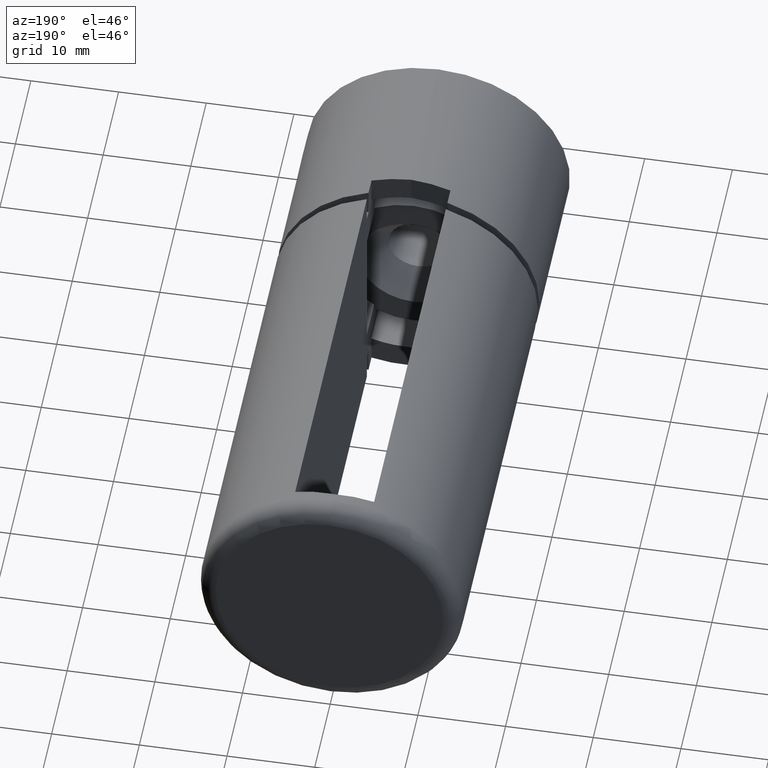
[diagram: clean part render]
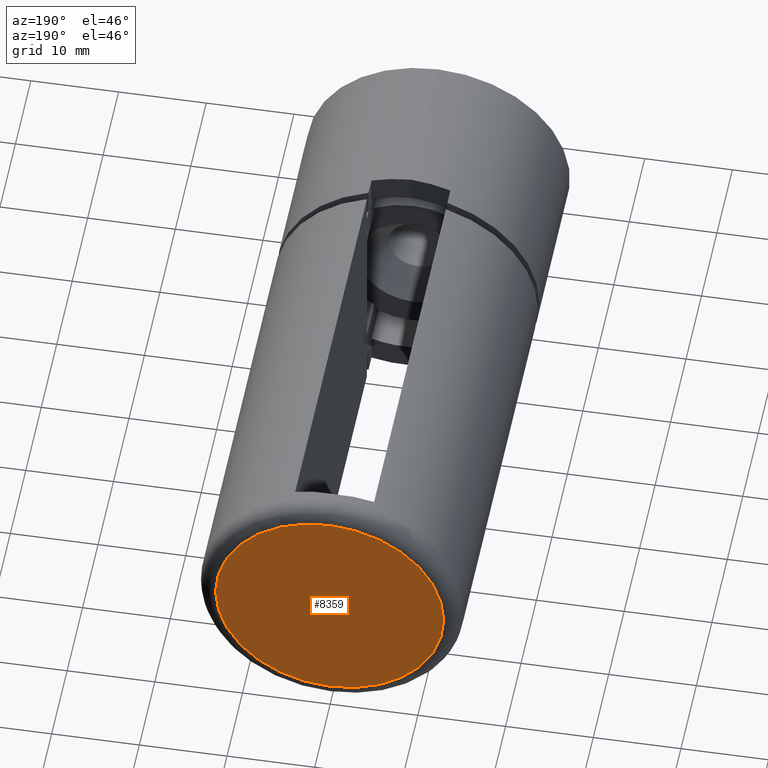
[diagram: same view with one face highlighted and labeled with its STEP entity id]
A machine part, auxiliary view. The second image highlights one B-rep face of the part: STEP entity #8359.
In plain terms, the highlighted planar face has unit normal (0, 1, 0).
Its self-contained STEP definition (entity closure, byte-faithful):
#996 = CARTESIAN_POINT ( 'NONE',  ( 0.0000000000000000000, 1.500000000000000000, 0.0000000000000000000 ) ) ;
#2787 = CARTESIAN_POINT ( 'NONE',  ( 0.0000000000000000000, 1.500000000000000000, -13.00000000000000000 ) ) ;
#3657 = DIRECTION ( 'NONE',  ( 0.0000000000000000000, -1.000000000000000000, 0.0000000000000000000 ) ) ;
#4005 = VERTEX_POINT ( 'NONE', #2787 ) ;
#6695 = AXIS2_PLACEMENT_3D ( 'NONE', #996, #3657, #17103 ) ;
#8359 = ADVANCED_FACE ( 'NONE', ( #9821 ), #16632, .T. ) ;
#9821 = FACE_OUTER_BOUND ( 'NONE', #16636, .T. ) ;
#10211 = AXIS2_PLACEMENT_3D ( 'NONE', #13331, #11931, #16082 ) ;
#11931 = DIRECTION ( 'NONE',  ( 0.0000000000000000000, -1.000000000000000000, 0.0000000000000000000 ) ) ;
#12159 = CIRCLE ( 'NONE', #10211, 13.00000000000000000 ) ;
#13331 = CARTESIAN_POINT ( 'NONE',  ( 0.0000000000000000000, 1.500000000000000000, 0.0000000000000000000 ) ) ;
#15212 = EDGE_CURVE ( 'NONE', #4005, #4005, #12159, .T. ) ;
#16082 = DIRECTION ( 'NONE',  ( 0.0000000000000000000, 0.0000000000000000000, -1.000000000000000000 ) ) ;
#16089 = ORIENTED_EDGE ( 'NONE', *, *, #15212, .T. ) ;
#16632 = PLANE ( 'NONE',  #6695 ) ;
#16636 = EDGE_LOOP ( 'NONE', ( #16089 ) ) ;
#17103 = DIRECTION ( 'NONE',  ( 0.0000000000000000000, -0.0000000000000000000, -1.000000000000000000 ) ) ;